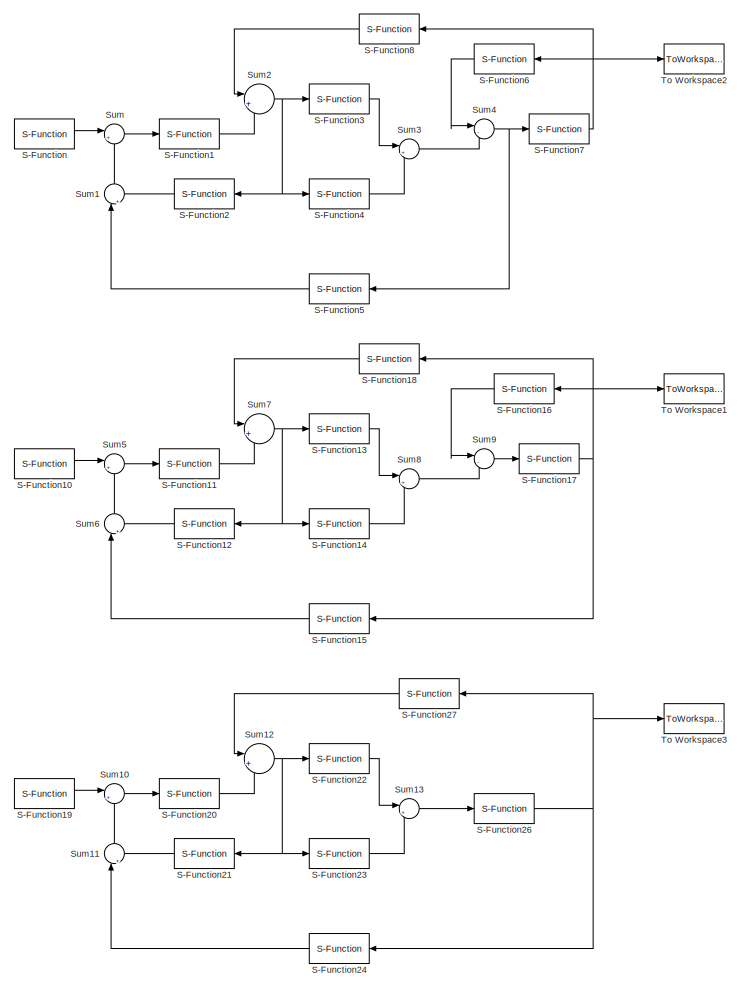
[diagram: root canvas - part 1/3, full width, top band]
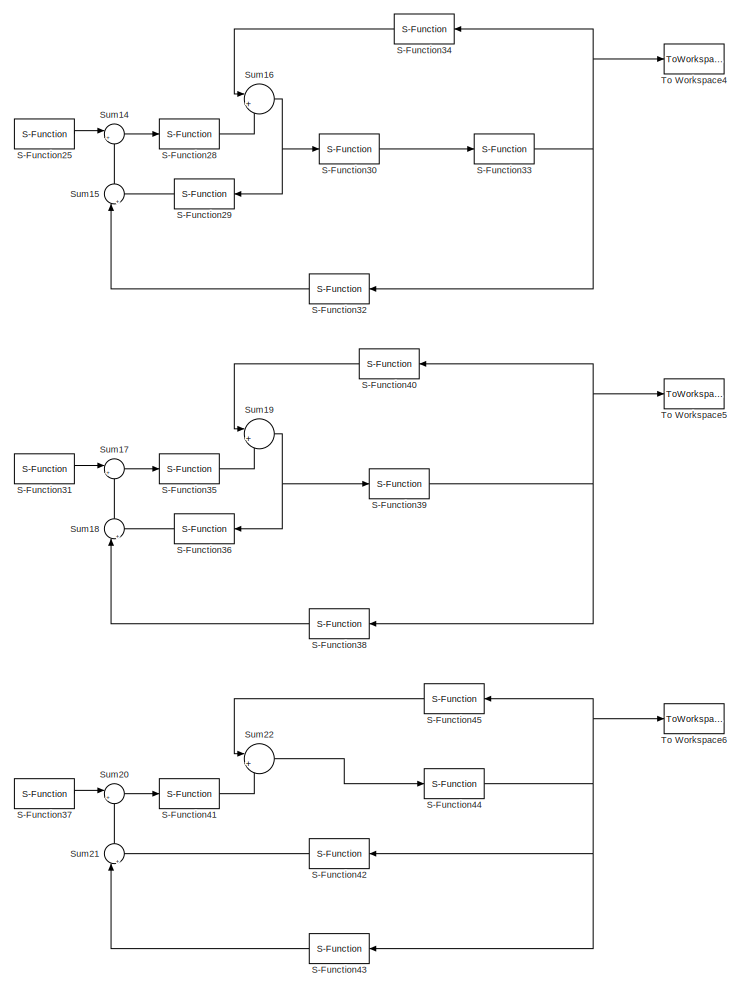
[diagram: root canvas - part 2/3, full width, middle band]
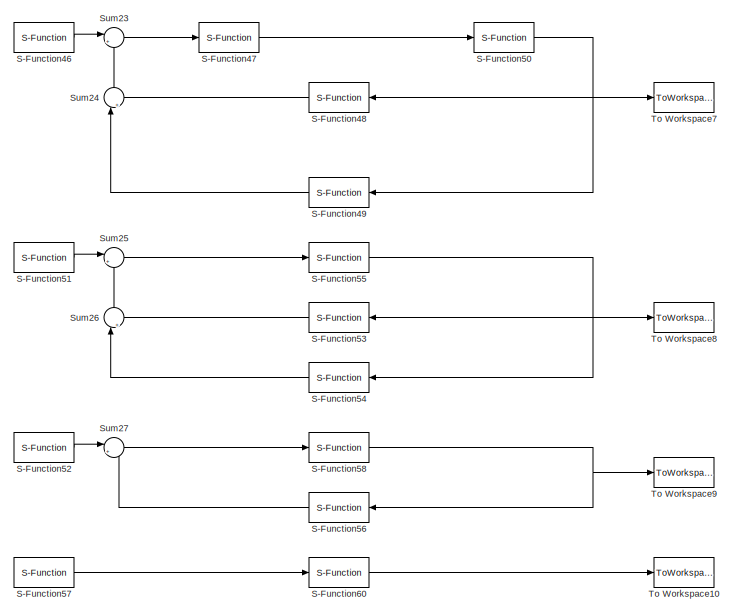
[diagram: root canvas - part 3/3, full width, bottom band]
MODEL slx_e113de4b68db
KIND model
BLOCK [S-Function] S-Function
  EnableBusSupport = off
  FunctionName = Rs
  Ports = [1, 1]
BLOCK [S-Function] S-Function1
  EnableBusSupport = off
  FunctionName = G1
  Ports = [1, 1]
BLOCK [S-Function] S-Function10
  EnableBusSupport = off
  FunctionName = Rs
  Ports = [1, 1]
BLOCK [S-Function] S-Function11
  EnableBusSupport = off
  FunctionName = G1
  Ports = [1, 1]
BLOCK [S-Function] S-Function12
  EnableBusSupport = off
  FunctionName = G2
  Ports = [1, 1]
BLOCK [S-Function] S-Function13
  EnableBusSupport = off
  FunctionName = G3
  Ports = [1, 1]
BLOCK [S-Function] S-Function14
  EnableBusSupport = off
  FunctionName = G4
  Ports = [1, 1]
BLOCK [S-Function] S-Function15
  EnableBusSupport = off
  FunctionName = G9
  Ports = [1, 1]
BLOCK [S-Function] S-Function16
  EnableBusSupport = off
  FunctionName = G6
  Ports = [1, 1]
BLOCK [S-Function] S-Function17
  EnableBusSupport = off
  FunctionName = G7
  Ports = [1, 1]
BLOCK [S-Function] S-Function18
  EnableBusSupport = off
  FunctionName = G8
  Ports = [1, 1]
BLOCK [S-Function] S-Function19
  EnableBusSupport = off
  FunctionName = Rs
  Ports = [1, 1]
BLOCK [S-Function] S-Function2
  EnableBusSupport = off
  FunctionName = G2
  Ports = [1, 1]
BLOCK [S-Function] S-Function20
  EnableBusSupport = off
  FunctionName = G1
  Ports = [1, 1]
BLOCK [S-Function] S-Function21
  EnableBusSupport = off
  FunctionName = G2
  Ports = [1, 1]
BLOCK [S-Function] S-Function22
  EnableBusSupport = off
  FunctionName = G3
  Ports = [1, 1]
BLOCK [S-Function] S-Function23
  EnableBusSupport = off
  FunctionName = G4
  Ports = [1, 1]
BLOCK [S-Function] S-Function24
  EnableBusSupport = off
  FunctionName = G9
  Ports = [1, 1]
BLOCK [S-Function] S-Function25
  EnableBusSupport = off
  FunctionName = Rs
  Ports = [1, 1]
BLOCK [S-Function] S-Function26
  EnableBusSupport = off
  FunctionName = G10
  Ports = [1, 1]
BLOCK [S-Function] S-Function27
  EnableBusSupport = off
  FunctionName = G8
  Ports = [1, 1]
BLOCK [S-Function] S-Function28
  EnableBusSupport = off
  FunctionName = G1
  Ports = [1, 1]
BLOCK [S-Function] S-Function29
  EnableBusSupport = off
  FunctionName = G2
  Ports = [1, 1]
BLOCK [S-Function] S-Function3
  EnableBusSupport = off
  FunctionName = G3
  Ports = [1, 1]
BLOCK [S-Function] S-Function30
  EnableBusSupport = off
  FunctionName = G11
  Ports = [1, 1]
BLOCK [S-Function] S-Function31
  EnableBusSupport = off
  FunctionName = Rs
  Ports = [1, 1]
BLOCK [S-Function] S-Function32
  EnableBusSupport = off
  FunctionName = G9
  Ports = [1, 1]
BLOCK [S-Function] S-Function33
  EnableBusSupport = off
  FunctionName = G10
  Ports = [1, 1]
BLOCK [S-Function] S-Function34
  EnableBusSupport = off
  FunctionName = G8
  Ports = [1, 1]
BLOCK [S-Function] S-Function35
  EnableBusSupport = off
  FunctionName = G1
  Ports = [1, 1]
BLOCK [S-Function] S-Function36
  EnableBusSupport = off
  FunctionName = G2
  Ports = [1, 1]
BLOCK [S-Function] S-Function37
  EnableBusSupport = off
  FunctionName = Rs
  Ports = [1, 1]
BLOCK [S-Function] S-Function38
  EnableBusSupport = off
  FunctionName = G9
  Ports = [1, 1]
BLOCK [S-Function] S-Function39
  EnableBusSupport = off
  FunctionName = G12
  Ports = [1, 1]
BLOCK [S-Function] S-Function4
  EnableBusSupport = off
  FunctionName = G4
  Ports = [1, 1]
BLOCK [S-Function] S-Function40
  EnableBusSupport = off
  FunctionName = G8
  Ports = [1, 1]
BLOCK [S-Function] S-Function41
  EnableBusSupport = off
  FunctionName = G1
  Ports = [1, 1]
BLOCK [S-Function] S-Function42
  EnableBusSupport = off
  FunctionName = G13
  Ports = [1, 1]
BLOCK [S-Function] S-Function43
  EnableBusSupport = off
  FunctionName = G9
  Ports = [1, 1]
BLOCK [S-Function] S-Function44
  EnableBusSupport = off
  FunctionName = G12
  Ports = [1, 1]
BLOCK [S-Function] S-Function45
  EnableBusSupport = off
  FunctionName = G8
  Ports = [1, 1]
BLOCK [S-Function] S-Function46
  EnableBusSupport = off
  FunctionName = Rs
  Ports = [1, 1]
BLOCK [S-Function] S-Function47
  EnableBusSupport = off
  FunctionName = G1
  Ports = [1, 1]
BLOCK [S-Function] S-Function48
  EnableBusSupport = off
  FunctionName = G13
  Ports = [1, 1]
BLOCK [S-Function] S-Function49
  EnableBusSupport = off
  FunctionName = G9
  Ports = [1, 1]
BLOCK [S-Function] S-Function5
  EnableBusSupport = off
  FunctionName = G5
  Ports = [1, 1]
BLOCK [S-Function] S-Function50
  EnableBusSupport = off
  FunctionName = G14
  Ports = [1, 1]
BLOCK [S-Function] S-Function51
  EnableBusSupport = off
  FunctionName = Rs
  Ports = [1, 1]
BLOCK [S-Function] S-Function52
  EnableBusSupport = off
  FunctionName = Rs
  Ports = [1, 1]
BLOCK [S-Function] S-Function53
  EnableBusSupport = off
  FunctionName = G13
  Ports = [1, 1]
BLOCK [S-Function] S-Function54
  EnableBusSupport = off
  FunctionName = G9
  Ports = [1, 1]
BLOCK [S-Function] S-Function55
  EnableBusSupport = off
  FunctionName = G15
  Ports = [1, 1]
BLOCK [S-Function] S-Function56
  EnableBusSupport = off
  FunctionName = G16
  Ports = [1, 1]
BLOCK [S-Function] S-Function57
  EnableBusSupport = off
  FunctionName = Rs
  Ports = [1, 1]
BLOCK [S-Function] S-Function58
  EnableBusSupport = off
  FunctionName = G15
  Ports = [1, 1]
BLOCK [S-Function] S-Function6
  EnableBusSupport = off
  FunctionName = G6
  Ports = [1, 1]
BLOCK [S-Function] S-Function60
  EnableBusSupport = off
  FunctionName = G17
  Ports = [1, 1]
BLOCK [S-Function] S-Function7
  EnableBusSupport = off
  FunctionName = G7
  Ports = [1, 1]
BLOCK [S-Function] S-Function8
  EnableBusSupport = off
  FunctionName = G8
  Ports = [1, 1]
BLOCK [Sum] Sum
  IconShape = round
  InputSameDT = off
  Inputs = |+-
  OutDataTypeStr = Inherit: Inherit via internal rule
  Ports = [2, 1]
  SaturateOnIntegerOverflow = off
BLOCK [Sum] Sum1
  IconShape = round
  InputSameDT = off
  Inputs = |++
  OutDataTypeStr = Inherit: Inherit via internal rule
  Ports = [2, 1]
  SaturateOnIntegerOverflow = off
BLOCK [Sum] Sum10
  IconShape = round
  InputSameDT = off
  Inputs = |+-
  OutDataTypeStr = Inherit: Inherit via internal rule
  Ports = [2, 1]
  SaturateOnIntegerOverflow = off
BLOCK [Sum] Sum11
  IconShape = round
  InputSameDT = off
  Inputs = |++
  OutDataTypeStr = Inherit: Inherit via internal rule
  Ports = [2, 1]
  SaturateOnIntegerOverflow = off
BLOCK [Sum] Sum12
  IconShape = round
  InputSameDT = off
  Inputs = |++
  OutDataTypeStr = Inherit: Inherit via internal rule
  Ports = [2, 1]
  SaturateOnIntegerOverflow = off
BLOCK [Sum] Sum13
  IconShape = round
  InputSameDT = off
  Inputs = |++
  OutDataTypeStr = Inherit: Inherit via internal rule
  Ports = [2, 1]
  SaturateOnIntegerOverflow = off
BLOCK [Sum] Sum14
  IconShape = round
  InputSameDT = off
  Inputs = |+-
  OutDataTypeStr = Inherit: Inherit via internal rule
  Ports = [2, 1]
  SaturateOnIntegerOverflow = off
BLOCK [Sum] Sum15
  IconShape = round
  InputSameDT = off
  Inputs = |++
  OutDataTypeStr = Inherit: Inherit via internal rule
  Ports = [2, 1]
  SaturateOnIntegerOverflow = off
BLOCK [Sum] Sum16
  IconShape = round
  InputSameDT = off
  Inputs = |++
  OutDataTypeStr = Inherit: Inherit via internal rule
  Ports = [2, 1]
  SaturateOnIntegerOverflow = off
BLOCK [Sum] Sum17
  IconShape = round
  InputSameDT = off
  Inputs = |+-
  OutDataTypeStr = Inherit: Inherit via internal rule
  Ports = [2, 1]
  SaturateOnIntegerOverflow = off
BLOCK [Sum] Sum18
  IconShape = round
  InputSameDT = off
  Inputs = |++
  OutDataTypeStr = Inherit: Inherit via internal rule
  Ports = [2, 1]
  SaturateOnIntegerOverflow = off
BLOCK [Sum] Sum19
  IconShape = round
  InputSameDT = off
  Inputs = |++
  OutDataTypeStr = Inherit: Inherit via internal rule
  Ports = [2, 1]
  SaturateOnIntegerOverflow = off
BLOCK [Sum] Sum2
  IconShape = round
  InputSameDT = off
  Inputs = |++
  OutDataTypeStr = Inherit: Inherit via internal rule
  Ports = [2, 1]
  SaturateOnIntegerOverflow = off
BLOCK [Sum] Sum20
  IconShape = round
  InputSameDT = off
  Inputs = |+-
  OutDataTypeStr = Inherit: Inherit via internal rule
  Ports = [2, 1]
  SaturateOnIntegerOverflow = off
BLOCK [Sum] Sum21
  IconShape = round
  InputSameDT = off
  Inputs = |++
  OutDataTypeStr = Inherit: Inherit via internal rule
  Ports = [2, 1]
  SaturateOnIntegerOverflow = off
BLOCK [Sum] Sum22
  IconShape = round
  InputSameDT = off
  Inputs = |++
  OutDataTypeStr = Inherit: Inherit via internal rule
  Ports = [2, 1]
  SaturateOnIntegerOverflow = off
BLOCK [Sum] Sum23
  IconShape = round
  InputSameDT = off
  Inputs = |+-
  OutDataTypeStr = Inherit: Inherit via internal rule
  Ports = [2, 1]
  SaturateOnIntegerOverflow = off
BLOCK [Sum] Sum24
  IconShape = round
  InputSameDT = off
  Inputs = |++
  OutDataTypeStr = Inherit: Inherit via internal rule
  Ports = [2, 1]
  SaturateOnIntegerOverflow = off
BLOCK [Sum] Sum25
  IconShape = round
  InputSameDT = off
  Inputs = |+-
  OutDataTypeStr = Inherit: Inherit via internal rule
  Ports = [2, 1]
  SaturateOnIntegerOverflow = off
BLOCK [Sum] Sum26
  IconShape = round
  InputSameDT = off
  Inputs = |++
  OutDataTypeStr = Inherit: Inherit via internal rule
  Ports = [2, 1]
  SaturateOnIntegerOverflow = off
BLOCK [Sum] Sum27
  IconShape = round
  InputSameDT = off
  Inputs = |+-
  OutDataTypeStr = Inherit: Inherit via internal rule
  Ports = [2, 1]
  SaturateOnIntegerOverflow = off
BLOCK [Sum] Sum3
  IconShape = round
  InputSameDT = off
  Inputs = |++
  OutDataTypeStr = Inherit: Inherit via internal rule
  Ports = [2, 1]
  SaturateOnIntegerOverflow = off
BLOCK [Sum] Sum4
  IconShape = round
  InputSameDT = off
  Inputs = |-+
  OutDataTypeStr = Inherit: Inherit via internal rule
  Ports = [2, 1]
  SaturateOnIntegerOverflow = off
BLOCK [Sum] Sum5
  IconShape = round
  InputSameDT = off
  Inputs = |+-
  OutDataTypeStr = Inherit: Inherit via internal rule
  Ports = [2, 1]
  SaturateOnIntegerOverflow = off
BLOCK [Sum] Sum6
  IconShape = round
  InputSameDT = off
  Inputs = |++
  OutDataTypeStr = Inherit: Inherit via internal rule
  Ports = [2, 1]
  SaturateOnIntegerOverflow = off
BLOCK [Sum] Sum7
  IconShape = round
  InputSameDT = off
  Inputs = |++
  OutDataTypeStr = Inherit: Inherit via internal rule
  Ports = [2, 1]
  SaturateOnIntegerOverflow = off
BLOCK [Sum] Sum8
  IconShape = round
  InputSameDT = off
  Inputs = |++
  OutDataTypeStr = Inherit: Inherit via internal rule
  Ports = [2, 1]
  SaturateOnIntegerOverflow = off
BLOCK [Sum] Sum9
  IconShape = round
  InputSameDT = off
  Inputs = |-+
  OutDataTypeStr = Inherit: Inherit via internal rule
  Ports = [2, 1]
  SaturateOnIntegerOverflow = off
BLOCK [ToWorkspace] To Workspace1
  MaxDataPoints = inf
  Ports = [1]
  SampleTime = -1
  VariableName = Ys1
BLOCK [ToWorkspace] To Workspace10
  MaxDataPoints = inf
  Ports = [1]
  SampleTime = -1
  VariableName = Ys9
BLOCK [ToWorkspace] To Workspace2
  MaxDataPoints = inf
  Ports = [1]
  SampleTime = -1
  VariableName = Ys
BLOCK [ToWorkspace] To Workspace3
  MaxDataPoints = inf
  Ports = [1]
  SampleTime = -1
  VariableName = Ys2
BLOCK [ToWorkspace] To Workspace4
  MaxDataPoints = inf
  Ports = [1]
  SampleTime = -1
  VariableName = Ys3
BLOCK [ToWorkspace] To Workspace5
  MaxDataPoints = inf
  Ports = [1]
  SampleTime = -1
  VariableName = Ys4
BLOCK [ToWorkspace] To Workspace6
  MaxDataPoints = inf
  Ports = [1]
  SampleTime = -1
  VariableName = Ys5
BLOCK [ToWorkspace] To Workspace7
  MaxDataPoints = inf
  Ports = [1]
  SampleTime = -1
  VariableName = Ys6
BLOCK [ToWorkspace] To Workspace8
  MaxDataPoints = inf
  Ports = [1]
  SampleTime = -1
  VariableName = Ys7
BLOCK [ToWorkspace] To Workspace9
  MaxDataPoints = inf
  Ports = [1]
  SampleTime = -1
  VariableName = Ys8
LINE S-Function10:1 -> Sum5:1
LINE S-Function11:1 -> Sum7:2
LINE S-Function12:1 -> Sum6:2
LINE S-Function13:1 -> Sum8:1
LINE S-Function14:1 -> Sum8:2
LINE S-Function15:1 -> Sum6:1
LINE S-Function16:1 -> Sum9:1
NET S-Function17:1 -> S-Function15:1, S-Function16:1, S-Function18:1, To Workspace1:1
LINE S-Function18:1 -> Sum7:1
LINE S-Function19:1 -> Sum10:1
LINE S-Function1:1 -> Sum2:2
LINE S-Function20:1 -> Sum12:2
LINE S-Function21:1 -> Sum11:2
LINE S-Function22:1 -> Sum13:1
LINE S-Function23:1 -> Sum13:2
LINE S-Function24:1 -> Sum11:1
LINE S-Function25:1 -> Sum14:1
NET S-Function26:1 -> S-Function24:1, S-Function27:1, To Workspace3:1
LINE S-Function27:1 -> Sum12:1
LINE S-Function28:1 -> Sum16:2
LINE S-Function29:1 -> Sum15:2
LINE S-Function2:1 -> Sum1:2
LINE S-Function30:1 -> S-Function33:1
LINE S-Function31:1 -> Sum17:1
LINE S-Function32:1 -> Sum15:1
NET S-Function33:1 -> S-Function32:1, S-Function34:1, To Workspace4:1
LINE S-Function34:1 -> Sum16:1
LINE S-Function35:1 -> Sum19:2
LINE S-Function36:1 -> Sum18:2
LINE S-Function37:1 -> Sum20:1
LINE S-Function38:1 -> Sum18:1
NET S-Function39:1 -> S-Function38:1, S-Function40:1, To Workspace5:1
LINE S-Function3:1 -> Sum3:1
LINE S-Function40:1 -> Sum19:1
LINE S-Function41:1 -> Sum22:2
LINE S-Function42:1 -> Sum21:2
LINE S-Function43:1 -> Sum21:1
NET S-Function44:1 -> S-Function42:1, S-Function43:1, S-Function45:1, To Workspace6:1
LINE S-Function45:1 -> Sum22:1
LINE S-Function46:1 -> Sum23:1
LINE S-Function47:1 -> S-Function50:1
LINE S-Function48:1 -> Sum24:2
LINE S-Function49:1 -> Sum24:1
LINE S-Function4:1 -> Sum3:2
NET S-Function50:1 -> S-Function48:1, S-Function49:1, To Workspace7:1
LINE S-Function51:1 -> Sum25:1
LINE S-Function52:1 -> Sum27:1
LINE S-Function53:1 -> Sum26:2
LINE S-Function54:1 -> Sum26:1
NET S-Function55:1 -> S-Function53:1, S-Function54:1, To Workspace8:1
LINE S-Function56:1 -> Sum27:2
LINE S-Function57:1 -> S-Function60:1
NET S-Function58:1 -> S-Function56:1, To Workspace9:1
LINE S-Function5:1 -> Sum1:1
LINE S-Function60:1 -> To Workspace10:1
LINE S-Function6:1 -> Sum4:1
NET S-Function7:1 -> S-Function6:1, S-Function8:1, To Workspace2:1
LINE S-Function8:1 -> Sum2:1
LINE S-Function:1 -> Sum:1
LINE Sum10:1 -> S-Function20:1
LINE Sum11:1 -> Sum10:2
NET Sum12:1 -> S-Function21:1, S-Function22:1, S-Function23:1
LINE Sum13:1 -> S-Function26:1
LINE Sum14:1 -> S-Function28:1
LINE Sum15:1 -> Sum14:2
NET Sum16:1 -> S-Function29:1, S-Function30:1
LINE Sum17:1 -> S-Function35:1
LINE Sum18:1 -> Sum17:2
NET Sum19:1 -> S-Function36:1, S-Function39:1
LINE Sum1:1 -> Sum:2
LINE Sum20:1 -> S-Function41:1
LINE Sum21:1 -> Sum20:2
LINE Sum22:1 -> S-Function44:1
LINE Sum23:1 -> S-Function47:1
LINE Sum24:1 -> Sum23:2
LINE Sum25:1 -> S-Function55:1
LINE Sum26:1 -> Sum25:2
LINE Sum27:1 -> S-Function58:1
NET Sum2:1 -> S-Function2:1, S-Function3:1, S-Function4:1
LINE Sum3:1 -> Sum4:2
NET Sum4:1 -> S-Function5:1, S-Function7:1
LINE Sum5:1 -> S-Function11:1
LINE Sum6:1 -> Sum5:2
NET Sum7:1 -> S-Function12:1, S-Function13:1, S-Function14:1
LINE Sum8:1 -> Sum9:2
LINE Sum9:1 -> S-Function17:1
LINE Sum:1 -> S-Function1:1
note: NET lines group one-source signal fan-out (src -> all destinations, sorted); 1:1 wires keep LINE
